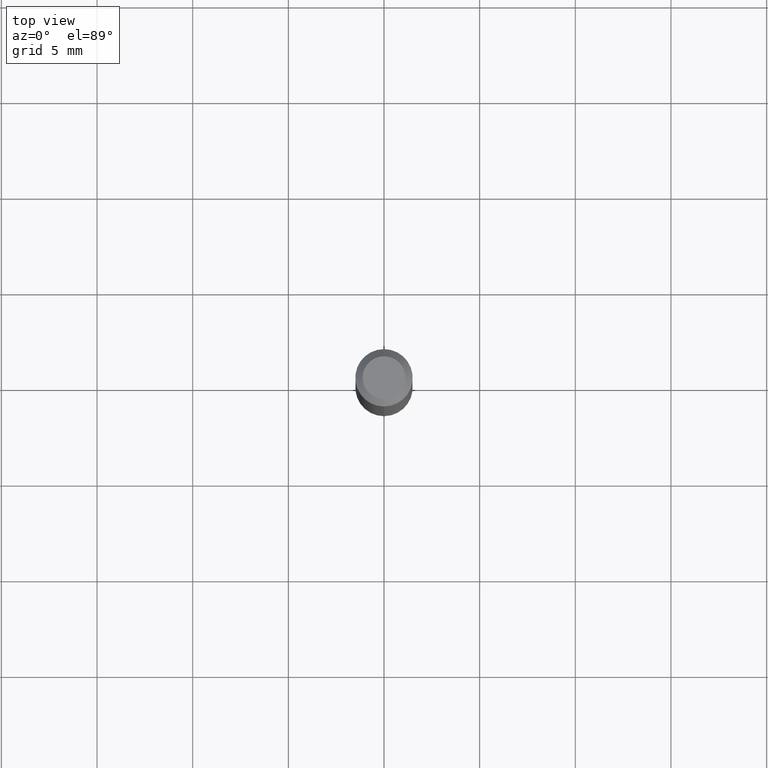
[diagram: clean part render]
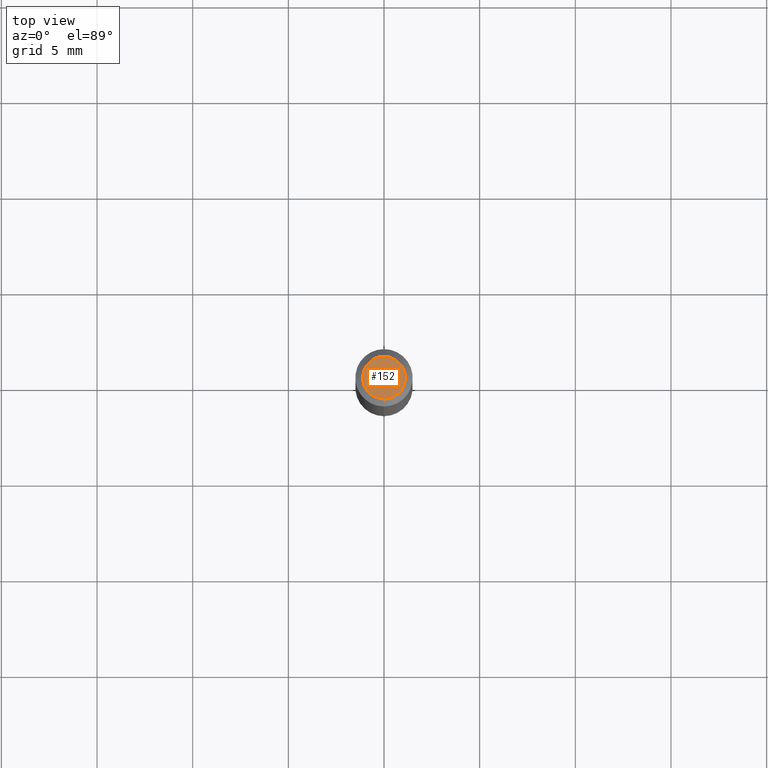
[diagram: same view with one face highlighted and labeled with its STEP entity id]
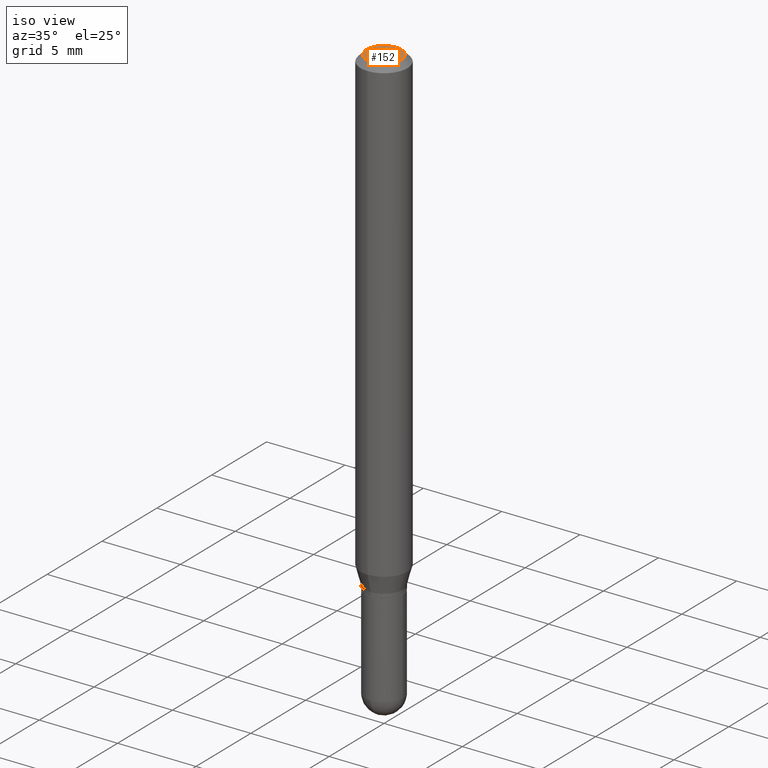
[diagram: same view with one face highlighted and labeled with its STEP entity id]
A machine part, top view. The second image highlights one B-rep face of the part: STEP entity #152.
A second angle (iso view) of the same face is appended — the face is thin or edge-on in the first view.
In plain terms, the highlighted planar face has unit normal (0, -0, -1).
Its self-contained STEP definition (entity closure, byte-faithful):
#13 = DIRECTION ( 'NONE',  ( -2.445509875133232403E-29, 3.491422525771973150E-15, 1.000000000000000000 ) ) ;
#32 = CARTESIAN_POINT ( 'NONE',  ( 3.599717260347271507E-16, 0.04404999999999999888, -2.454645658922200893E-16 ) ) ;
#38 = AXIS2_PLACEMENT_3D ( 'NONE', #289, #54, #173 ) ;
#54 = DIRECTION ( 'NONE',  ( -2.445509875133232403E-29, 3.491422525771973150E-15, 1.000000000000000000 ) ) ;
#75 = CARTESIAN_POINT ( 'NONE',  ( 2.241735408097937427E-45, -3.200496379196732715E-31, -9.166740363196474463E-17 ) ) ;
#88 = ORIENTED_EDGE ( 'NONE', *, *, #148, .T. ) ;
#148 = EDGE_CURVE ( 'NONE', #184, #360, #207, .T. ) ;
#152 = ADVANCED_FACE ( 'NONE', ( #342 ), #346, .F. ) ;
#173 = DIRECTION ( 'NONE',  ( -6.982962677686265133E-15, -1.000000000000000000, 3.491422525771973150E-15 ) ) ;
#181 = ORIENTED_EDGE ( 'NONE', *, *, #241, .T. ) ;
#184 = VERTEX_POINT ( 'NONE', #323 ) ;
#188 = CARTESIAN_POINT ( 'NONE',  ( 3.075995059520799729E-16, 0.04404999999999999888, -1.996308640762377601E-16 ) ) ;
#207 = CIRCLE ( 'NONE', #237, 0.04404999999999999888 ) ;
#225 = EDGE_LOOP ( 'NONE', ( #181, #88 ) ) ;
#237 = AXIS2_PLACEMENT_3D ( 'NONE', #75, #13, #428 ) ;
#241 = EDGE_CURVE ( 'NONE', #360, #184, #467, .T. ) ;
#275 = DIRECTION ( 'NONE',  ( 2.445509875133232123E-29, -3.491422525771973150E-15, -1.000000000000000000 ) ) ;
#277 = DIRECTION ( 'NONE',  ( 6.982962677686265922E-15, 1.000000000000000000, -3.491422525771973150E-15 ) ) ;
#289 = CARTESIAN_POINT ( 'NONE',  ( 2.241735408097937427E-45, -3.200496379196732715E-31, -9.166740363196474463E-17 ) ) ;
#323 = CARTESIAN_POINT ( 'NONE',  ( -3.536586717851222218E-16, -0.04404999999999999888, 6.212975862829066168E-17 ) ) ;
#342 = FACE_OUTER_BOUND ( 'NONE', #225, .T. ) ;
#346 = PLANE ( 'NONE',  #491 ) ;
#360 = VERTEX_POINT ( 'NONE', #32 ) ;
#428 = DIRECTION ( 'NONE',  ( -6.982962677686265133E-15, -1.000000000000000000, 3.491422525771973150E-15 ) ) ;
#467 = CIRCLE ( 'NONE', #38, 0.04404999999999999888 ) ;
#491 = AXIS2_PLACEMENT_3D ( 'NONE', #188, #275, #277 ) ;